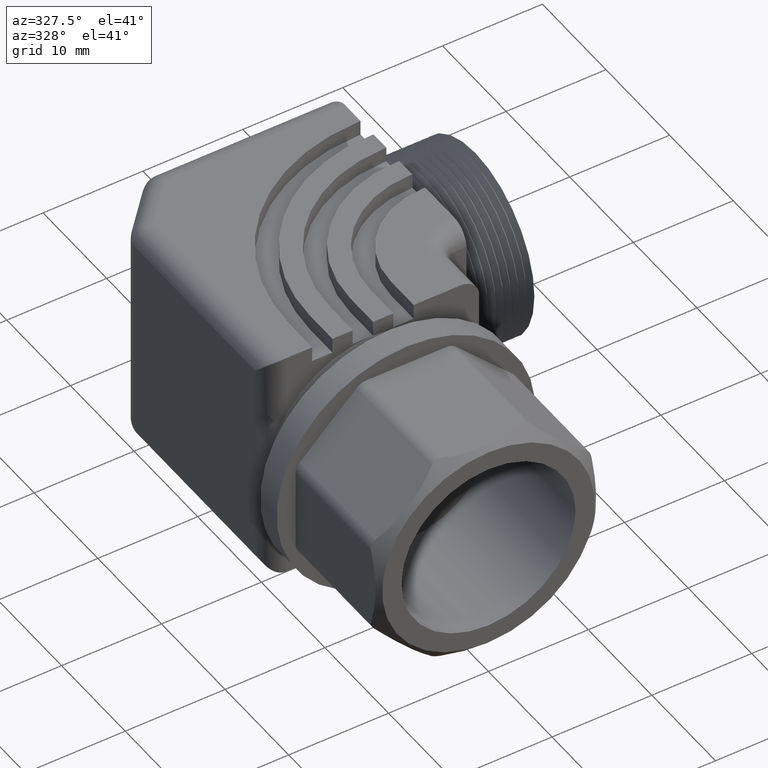
[diagram: clean part render]
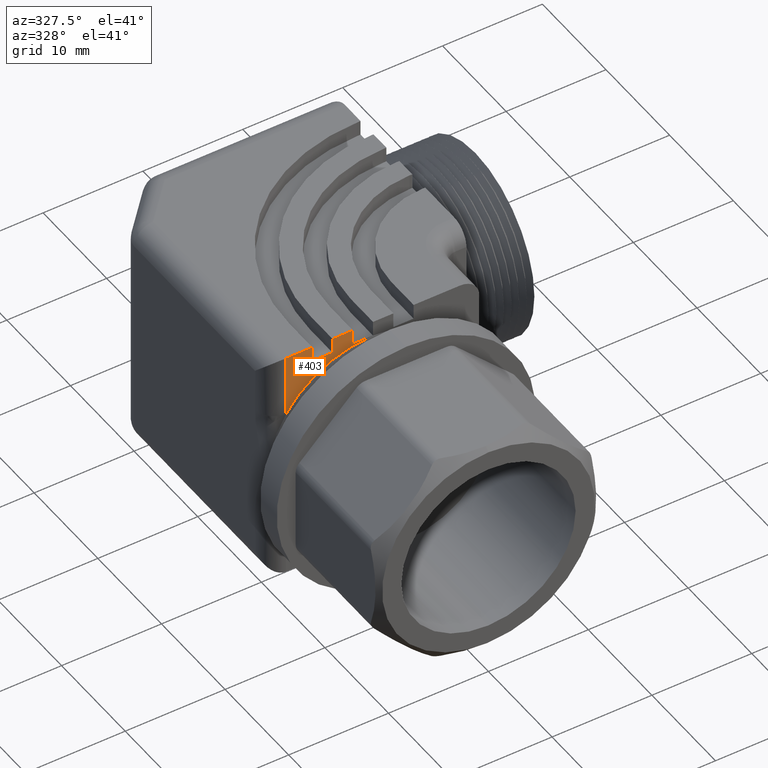
[diagram: same view with one face highlighted and labeled with its STEP entity id]
A machine part, auxiliary view. The second image highlights one B-rep face of the part: STEP entity #403.
In plain terms, the highlighted planar face has unit normal (0, 1, -0).
Its self-contained STEP definition (entity closure, byte-faithful):
#21 = VERTEX_POINT ( 'NONE', #1724 ) ;
#23 = ORIENTED_EDGE ( 'NONE', *, *, #348, .T. ) ;
#28 = ORIENTED_EDGE ( 'NONE', *, *, #402, .F. ) ;
#348 = EDGE_CURVE ( 'NONE', #444, #21, #2299, .T. ) ;
#350 = ORIENTED_EDGE ( 'NONE', *, *, #360, .F. ) ;
#351 = ORIENTED_EDGE ( 'NONE', *, *, #352, .F. ) ;
#352 = EDGE_CURVE ( 'NONE', #353, #358, #2295, .T. ) ;
#353 = VERTEX_POINT ( 'NONE', #2291 ) ;
#354 = ORIENTED_EDGE ( 'NONE', *, *, #355, .F. ) ;
#355 = EDGE_CURVE ( 'NONE', #361, #423, #2290, .T. ) ;
#358 = VERTEX_POINT ( 'NONE', #2279 ) ;
#360 = EDGE_CURVE ( 'NONE', #358, #361, #2278, .T. ) ;
#361 = VERTEX_POINT ( 'NONE', #2274 ) ;
#395 = VERTEX_POINT ( 'NONE', #2336 ) ;
#396 = ORIENTED_EDGE ( 'NONE', *, *, #400, .F. ) ;
#398 = EDGE_CURVE ( 'NONE', #429, #399, #2331, .T. ) ;
#399 = VERTEX_POINT ( 'NONE', #2391 ) ;
#400 = EDGE_CURVE ( 'NONE', #399, #395, #2390, .T. ) ;
#402 = EDGE_CURVE ( 'NONE', #395, #353, #2382, .T. ) ;
#403 = ADVANCED_FACE ( 'NONE', ( #2378 ), #2376, .F. ) ;
#423 = VERTEX_POINT ( 'NONE', #2408 ) ;
#429 = VERTEX_POINT ( 'NONE', #2401 ) ;
#433 = EDGE_LOOP ( 'NONE', ( #350, #351, #28, #396, #440, #443, #23, #446, #354 ) ) ;
#440 = ORIENTED_EDGE ( 'NONE', *, *, #398, .F. ) ;
#443 = ORIENTED_EDGE ( 'NONE', *, *, #460, .T. ) ;
#444 = VERTEX_POINT ( 'NONE', #2442 ) ;
#446 = ORIENTED_EDGE ( 'NONE', *, *, #461, .F. ) ;
#460 = EDGE_CURVE ( 'NONE', #429, #444, #2476, .T. ) ;
#461 = EDGE_CURVE ( 'NONE', #423, #21, #2472, .T. ) ;
#1724 = CARTESIAN_POINT ( 'NONE',  ( 5.105637887225099100E-017, 0.7140000000000000800, 0.4099999999999997000 ) ) ;
#2239 = CARTESIAN_POINT ( 'NONE',  ( 0.0000000000000000000, 0.7140000000000000800, 0.0000000000000000000 ) ) ;
#2274 = CARTESIAN_POINT ( 'NONE',  ( -0.07999999999999990500, 0.7140000000000000800, 0.4699999999999997500 ) ) ;
#2275 = DIRECTION ( 'NONE',  ( 1.000000000000000000, 3.267621962210985600E-016, -0.0000000000000000000 ) ) ;
#2276 = VECTOR ( 'NONE', #2275, 39.37007874015748100 ) ;
#2277 = CARTESIAN_POINT ( 'NONE',  ( 0.4180177550000002700, 0.7140000000000001900, 0.4699999999999999700 ) ) ;
#2278 = LINE ( 'NONE', #2277, #2276 ) ;
#2279 = CARTESIAN_POINT ( 'NONE',  ( -0.1599999999999999200, 0.7140000000000000800, 0.4699999999999999700 ) ) ;
#2287 = DIRECTION ( 'NONE',  ( -0.0000000000000000000, -0.0000000000000000000, -1.000000000000000000 ) ) ;
#2288 = VECTOR ( 'NONE', #2287, 39.37007874015748100 ) ;
#2289 = CARTESIAN_POINT ( 'NONE',  ( -0.07999999999999990500, 0.7140000000000000800, 0.4099999999999994800 ) ) ;
#2290 = LINE ( 'NONE', #2289, #2288 ) ;
#2291 = CARTESIAN_POINT ( 'NONE',  ( -0.1599999999999999800, 0.7140000000000000800, 0.4099999999999998100 ) ) ;
#2292 = DIRECTION ( 'NONE',  ( 5.691349986800532100E-016, -0.0000000000000000000, 1.000000000000000000 ) ) ;
#2293 = VECTOR ( 'NONE', #2292, 39.37007874015748100 ) ;
#2294 = CARTESIAN_POINT ( 'NONE',  ( -0.1599999999999999200, 0.7140000000000000800, 0.4699999999999999700 ) ) ;
#2295 = LINE ( 'NONE', #2294, #2293 ) ;
#2296 = DIRECTION ( 'NONE',  ( 0.0000000000000000000, 0.0000000000000000000, 1.000000000000000000 ) ) ;
#2297 = DIRECTION ( 'NONE',  ( 0.0000000000000000000, 1.000000000000000000, 0.0000000000000000000 ) ) ;
#2298 = AXIS2_PLACEMENT_3D ( 'NONE', #2239, #2297, #2296 ) ;
#2299 = CIRCLE ( 'NONE', #2298, 0.4099999999999999800 ) ;
#2330 = CARTESIAN_POINT ( 'NONE',  ( 0.4180177550000002700, 0.7140000000000001900, 0.4699999999999999700 ) ) ;
#2331 = LINE ( 'NONE', #2330, #2393 ) ;
#2336 = CARTESIAN_POINT ( 'NONE',  ( -0.2399999999999999600, 0.7140000000000000800, 0.4099999999999998100 ) ) ;
#2372 = DIRECTION ( 'NONE',  ( 0.0000000000000000000, 0.0000000000000000000, 1.000000000000000000 ) ) ;
#2373 = DIRECTION ( 'NONE',  ( 0.0000000000000000000, 1.000000000000000000, -0.0000000000000000000 ) ) ;
#2374 = CARTESIAN_POINT ( 'NONE',  ( 6.829619984160658000E-017, 0.7140000000000000800, 0.4699999999999999700 ) ) ;
#2375 = AXIS2_PLACEMENT_3D ( 'NONE', #2374, #2373, #2372 ) ;
#2376 = PLANE ( 'NONE',  #2375 ) ;
#2378 = FACE_OUTER_BOUND ( 'NONE', #433, .T. ) ;
#2379 = DIRECTION ( 'NONE',  ( 1.000000000000000000, -0.0000000000000000000, 0.0000000000000000000 ) ) ;
#2380 = VECTOR ( 'NONE', #2379, 39.37007874015748100 ) ;
#2381 = CARTESIAN_POINT ( 'NONE',  ( -0.1599999999999999800, 0.7140000000000000800, 0.4099999999999998100 ) ) ;
#2382 = LINE ( 'NONE', #2381, #2380 ) ;
#2387 = DIRECTION ( 'NONE',  ( 5.691349986800532100E-016, -0.0000000000000000000, -1.000000000000000000 ) ) ;
#2388 = VECTOR ( 'NONE', #2387, 39.37007874015748100 ) ;
#2389 = CARTESIAN_POINT ( 'NONE',  ( -0.2399999999999999600, 0.7140000000000000800, 0.4099999999999998100 ) ) ;
#2390 = LINE ( 'NONE', #2389, #2388 ) ;
#2391 = CARTESIAN_POINT ( 'NONE',  ( -0.2399999999999999600, 0.7140000000000000800, 0.4699999999999999700 ) ) ;
#2392 = DIRECTION ( 'NONE',  ( 1.000000000000000000, 3.267621962210985600E-016, -0.0000000000000000000 ) ) ;
#2393 = VECTOR ( 'NONE', #2392, 39.37007874015748100 ) ;
#2401 = CARTESIAN_POINT ( 'NONE',  ( -0.3430177550000002600, 0.7139999999999999700, 0.4699999999999999700 ) ) ;
#2408 = CARTESIAN_POINT ( 'NONE',  ( -0.07999999999999990500, 0.7140000000000000800, 0.4099999999999994800 ) ) ;
#2442 = CARTESIAN_POINT ( 'NONE',  ( -0.3430177550000000900, 0.7140000000000000800, 0.2245858850301147000 ) ) ;
#2469 = DIRECTION ( 'NONE',  ( 1.000000000000000000, -0.0000000000000000000, 0.0000000000000000000 ) ) ;
#2470 = VECTOR ( 'NONE', #2469, 39.37007874015748100 ) ;
#2471 = CARTESIAN_POINT ( 'NONE',  ( 1.021127577445023000E-016, 0.7140000000000000800, 0.4099999999999994800 ) ) ;
#2472 = LINE ( 'NONE', #2471, #2470 ) ;
#2473 = DIRECTION ( 'NONE',  ( 0.0000000000000000000, -0.0000000000000000000, -1.000000000000000000 ) ) ;
#2474 = VECTOR ( 'NONE', #2473, 39.37007874015748100 ) ;
#2475 = CARTESIAN_POINT ( 'NONE',  ( -0.3430177550000000900, 0.7140000000000000800, 0.4699999999999999700 ) ) ;
#2476 = LINE ( 'NONE', #2475, #2474 ) ;